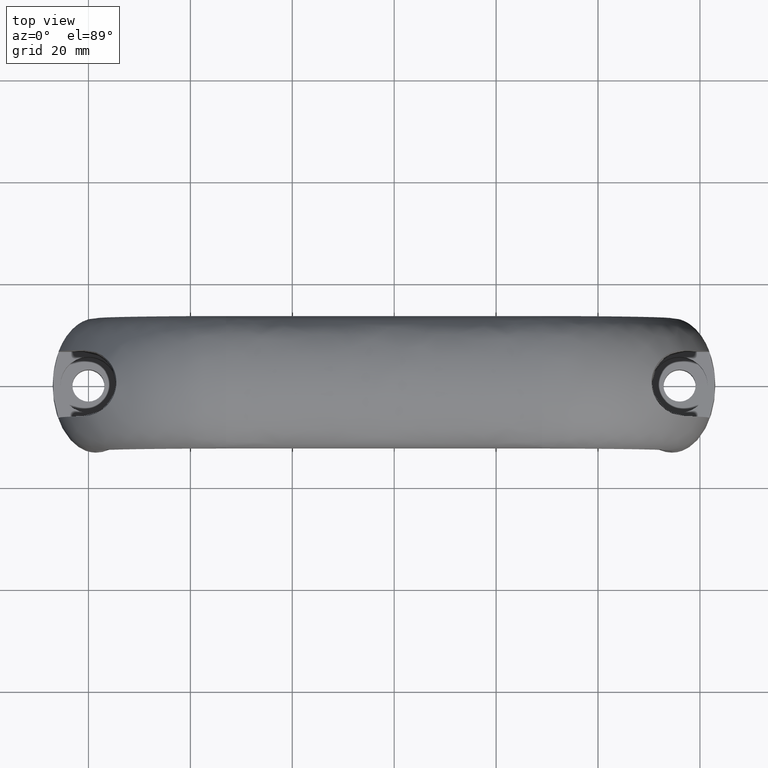
[diagram: clean part render]
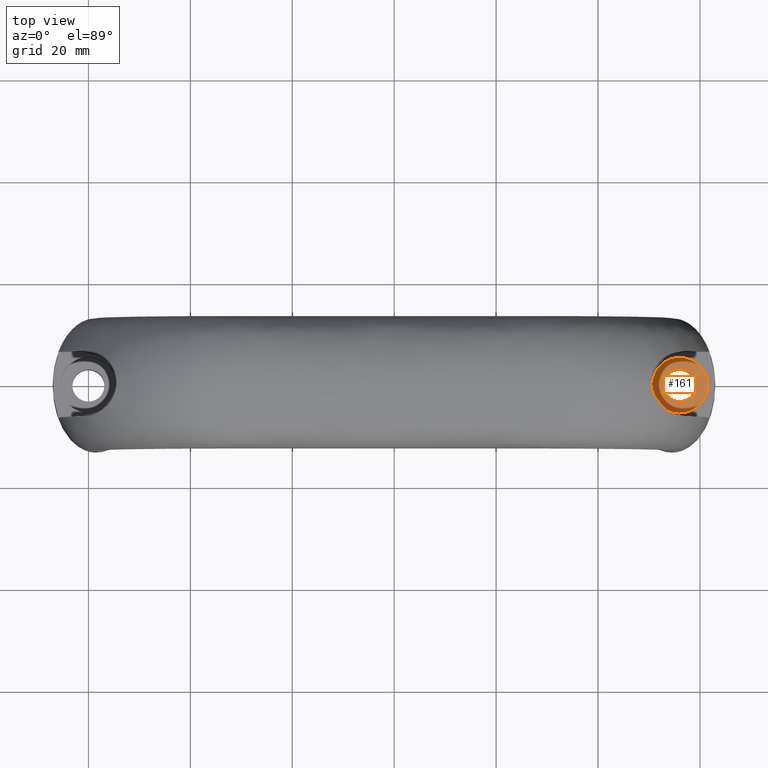
[diagram: same view with one face highlighted and labeled with its STEP entity id]
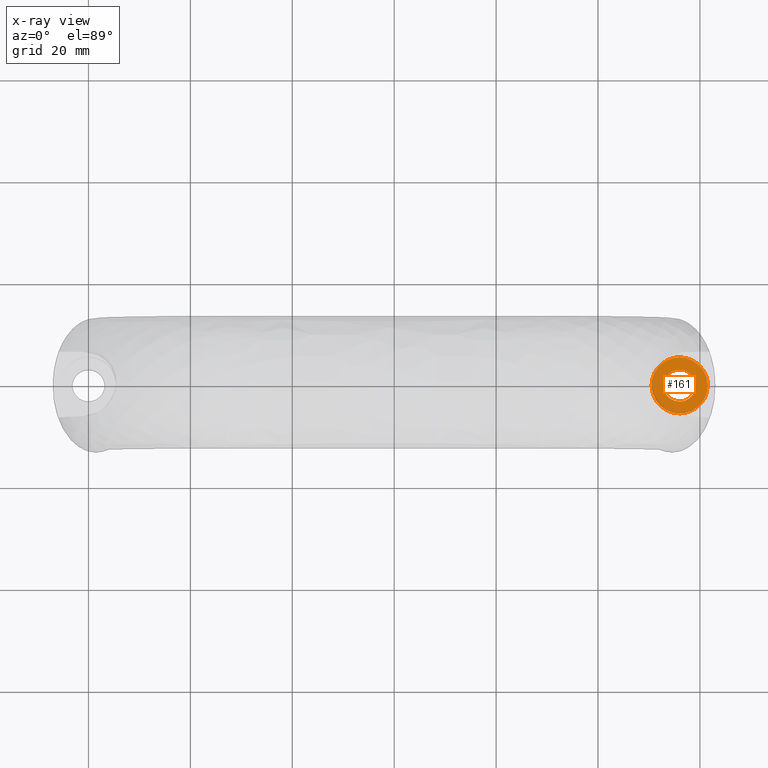
[diagram: x-ray of the same camera — body ghosted, the highlighted face saturated]
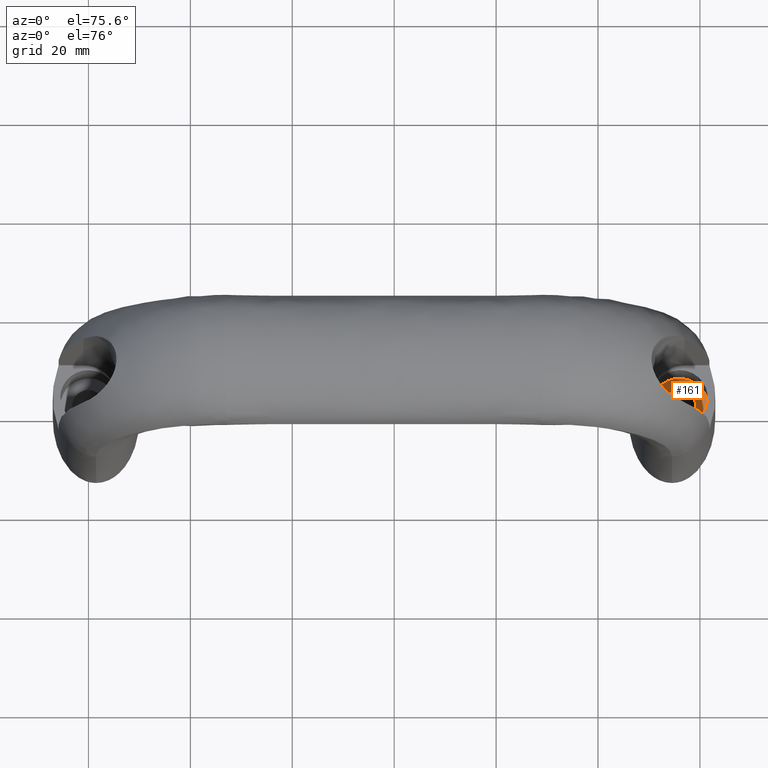
[diagram: same view with one face highlighted and labeled with its STEP entity id]
A machine part, top view. The second image highlights one B-rep face of the part: STEP entity #161.
The next image is the same camera in x-ray: the body ghosted, the highlighted face saturated — about 3% of this face is hidden behind the body in this view.
A second angle (auxiliary view) of the same face is appended — the face is thin or edge-on in the first view.
In plain terms, the highlighted face is a freeform B-spline surface patch.
Its self-contained STEP definition (entity closure, byte-faithful):
#5=CARTESIAN_POINT('',(122.049449978679900,-6.049449978679567,10.500000000000000));
#6=CARTESIAN_POINT('',(109.950549726277200,-6.049449978679567,10.500000000000000));
#7=CARTESIAN_POINT('',(122.049449978679900,6.049450273722559,10.500000000000000));
#8=CARTESIAN_POINT('',(109.950549726277200,6.049450273722559,10.500000000000000));
#9=B_SPLINE_SURFACE_WITH_KNOTS('',1,1,((#5,#7),(#6,#8)),.UNSPECIFIED.,.F.,.F.,.U.,(2,2),(2,2),(0.0,12.098900252402739),(0.0,12.098900252402130),.UNSPECIFIED.);
#10=CARTESIAN_POINT('',(119.715746411276700,4.055025689279050,10.499999999999281));
#11=VERTEX_POINT('',#10);
#12=CARTESIAN_POINT('',(121.500000000000000,0.0,10.500000000000000));
#13=VERTEX_POINT('',#12);
#14=CARTESIAN_POINT('',(119.715746411276700,4.055025689279050,10.499999999999281));
#15=CARTESIAN_POINT('',(120.083569840087700,3.718204785315109,10.499999999999350));
#16=CARTESIAN_POINT('',(120.588621959438500,3.109549310887050,10.499999999999419));
#17=CARTESIAN_POINT('',(121.137887974696800,2.052723616935044,10.499999999999680));
#18=CARTESIAN_POINT('',(121.433082363303000,1.068682876463774,10.499999999999710));
#19=CARTESIAN_POINT('',(121.500023202515390,0.332475138097329,10.500000000000011));
#20=CARTESIAN_POINT('',(121.500000000000000,0.0,10.500000000000000));
#21=B_SPLINE_CURVE_WITH_KNOTS('',3,(#14,#15,#16,#17,#18,#19,#20),.UNSPECIFIED.,.F.,.U.,(4,1,1,1,4),(0.000000044465982,1.496159016345422,2.351074381268739,3.562271194716664,4.559704755115080),.UNSPECIFIED.);
#22=EDGE_CURVE('',#11,#13,#21,.T.);
#23=ORIENTED_EDGE('',*,*,#22,.F.);
#24=CARTESIAN_POINT('',(116.000001727894700,5.499999999999728,10.500000000000000));
#25=VERTEX_POINT('',#24);
#26=CARTESIAN_POINT('',(116.000001727894700,5.499999999999728,10.500000000000000));
#27=CARTESIAN_POINT('',(116.467483041698700,5.500137409906038,10.499999999999920));
#28=CARTESIAN_POINT('',(117.338596187031900,5.388250384134717,10.499999999999719));
#29=CARTESIAN_POINT('',(118.616599613229890,4.899773273266928,10.499999999999501));
#30=CARTESIAN_POINT('',(119.355524380924290,4.385335432006642,10.499999999999320));
#31=CARTESIAN_POINT('',(119.715746411276700,4.055025689279050,10.499999999999281));
#32=B_SPLINE_CURVE_WITH_KNOTS('',3,(#26,#27,#28,#29,#30,#31),.UNSPECIFIED.,.F.,.U.,(4,1,1,4),(0.000000032911171,1.402408690401471,2.613566448886831,4.079728362559101),.UNSPECIFIED.);
#33=EDGE_CURVE('',#25,#11,#32,.T.);
#34=ORIENTED_EDGE('',*,*,#33,.F.);
#35=CARTESIAN_POINT('',(110.500000000000000,0.0,10.500000000000000));
#36=VERTEX_POINT('',#35);
#37=CARTESIAN_POINT('',(110.500000000000000,0.0,10.500000000000000));
#38=CARTESIAN_POINT('',(110.499956011893700,0.382462721909900,10.500000000000020));
#39=CARTESIAN_POINT('',(110.589475017804900,1.237410742852103,10.499999999999989));
#40=CARTESIAN_POINT('',(111.032507063629590,2.500414301476941,10.500000000000011));
#41=CARTESIAN_POINT('',(111.757618524980900,3.571094322280702,10.499999999999940));
#42=CARTESIAN_POINT('',(112.728681602834000,4.484386712409938,10.500000000000091));
#43=CARTESIAN_POINT('',(113.792510399233510,5.095799100016738,10.499999999999840));
#44=CARTESIAN_POINT('',(114.965108290007900,5.435591258924559,10.500000000000250));
#45=CARTESIAN_POINT('',(115.662533423890690,5.500033640195025,10.499999999999799));
#46=CARTESIAN_POINT('',(116.000001727894700,5.499999999999728,10.500000000000000));
#47=B_SPLINE_CURVE_WITH_KNOTS('',3,(#37,#38,#39,#40,#41,#42,#43,#44,#45,#46),.UNSPECIFIED.,.F.,.U.,(4,1,1,1,1,1,1,4),(0.000000148590928,1.147401208913366,2.564842391377214,3.982267981500279,4.994641177310966,6.547073264470522,7.627029290844387,8.639434979699097),.UNSPECIFIED.);
#48=EDGE_CURVE('',#36,#25,#47,.T.);
#49=ORIENTED_EDGE('',*,*,#48,.F.);
#50=CARTESIAN_POINT('',(112.284253588723400,-4.055025689279031,10.499999999999281));
#51=VERTEX_POINT('',#50);
#52=CARTESIAN_POINT('',(112.284253588723400,-4.055025689279031,10.499999999999281));
#53=CARTESIAN_POINT('',(111.969024875414700,-3.766294804903672,10.499999999999350));
#54=CARTESIAN_POINT('',(111.390831659622900,-3.096719963819099,10.499999999999440));
#55=CARTESIAN_POINT('',(110.693262920709600,-1.733380003133345,10.499999999999689));
#56=CARTESIAN_POINT('',(110.499532224970590,-0.641264082496100,10.499999999999901));
#57=CARTESIAN_POINT('',(110.500000000000000,0.0,10.500000000000000));
#58=B_SPLINE_CURVE_WITH_KNOTS('',3,(#52,#53,#54,#55,#56,#57),.UNSPECIFIED.,.F.,.U.,(4,1,1,4),(0.000000044466832,1.282418839392935,2.636063729686378,4.559704755115058),.UNSPECIFIED.);
#59=EDGE_CURVE('',#51,#36,#58,.T.);
#60=ORIENTED_EDGE('',*,*,#59,.F.);
#61=CARTESIAN_POINT('',(115.999998272105400,-5.499999999999729,10.500000000000000));
#62=VERTEX_POINT('',#61);
#63=CARTESIAN_POINT('',(115.999998272105400,-5.499999999999729,10.500000000000000));
#64=CARTESIAN_POINT('',(115.532524287619000,-5.500122659777062,10.499999999999920));
#65=CARTESIAN_POINT('',(114.597625420885290,-5.380136841676208,10.499999999999719));
#66=CARTESIAN_POINT('',(113.325729357326690,-4.868447911729064,10.499999999999501));
#67=CARTESIAN_POINT('',(112.597522739179000,-4.342192289948611,10.499999999999330));
#68=CARTESIAN_POINT('',(112.284253588723400,-4.055025689279031,10.499999999999281));
#69=B_SPLINE_CURVE_WITH_KNOTS('',3,(#63,#64,#65,#66,#67,#68),.UNSPECIFIED.,.F.,.U.,(4,1,1,4),(0.000000032908901,1.402408690399535,2.804810741303481,4.079728362559188),.UNSPECIFIED.);
#70=EDGE_CURVE('',#62,#51,#69,.T.);
#71=ORIENTED_EDGE('',*,*,#70,.F.);
#72=CARTESIAN_POINT('',(121.500000000000000,0.0,10.500000000000000));
#73=CARTESIAN_POINT('',(121.500077024871500,-0.404974421608453,10.499999999999989));
#74=CARTESIAN_POINT('',(121.415126498372300,-1.169887245679472,10.500000000000011));
#75=CARTESIAN_POINT('',(121.074744225215600,-2.200259943746632,10.500000000000000));
#76=CARTESIAN_POINT('',(120.541220381931590,-3.169638577098655,10.500000000000030));
#77=CARTESIAN_POINT('',(119.718701723713200,-4.135359278705676,10.499999999999989));
#78=CARTESIAN_POINT('',(118.711160206594000,-4.835648040726416,10.499999999999989));
#79=CARTESIAN_POINT('',(117.439715978099500,-5.362299194616000,10.500000000000020));
#80=CARTESIAN_POINT('',(116.585000100040110,-5.500302701561609,10.500000000000099));
#81=CARTESIAN_POINT('',(115.999998272105400,-5.499999999999729,10.500000000000000));
#82=B_SPLINE_CURVE_WITH_KNOTS('',3,(#72,#73,#74,#75,#76,#77,#78,#79,#80,#81),.UNSPECIFIED.,.F.,.U.,(4,1,1,1,1,1,1,4),(0.000000148600085,1.214911340604616,2.294851921446813,3.239803277743257,4.522190035745800,6.074594570356698,6.884557977140097,8.639434979699059),.UNSPECIFIED.);
#83=EDGE_CURVE('',#13,#62,#82,.T.);
#84=ORIENTED_EDGE('',*,*,#83,.F.);
#85=EDGE_LOOP('',(#23,#34,#49,#60,#71,#84));
#86=FACE_OUTER_BOUND('',#85,.T.);
#87=CARTESIAN_POINT('',(119.150000000000010,0.0,10.500000000000000));
#88=VERTEX_POINT('',#87);
#89=CARTESIAN_POINT('',(115.999997689449700,-3.149999999999153,10.500000000000000));
#90=VERTEX_POINT('',#89);
#91=CARTESIAN_POINT('',(119.150000000000010,0.0,10.500000000000000));
#92=CARTESIAN_POINT('',(119.150023636888510,-0.206157388981745,10.500000000000011));
#93=CARTESIAN_POINT('',(119.106853091697100,-0.644263456636735,10.500000000000000));
#94=CARTESIAN_POINT('',(118.926767650416000,-1.212773820471343,10.499999999999989));
#95=CARTESIAN_POINT('',(118.646561529731200,-1.736937505468287,10.500000000000030));
#96=CARTESIAN_POINT('',(118.296074895011200,-2.186038344058953,10.499999999999989));
#97=CARTESIAN_POINT('',(117.747127302324300,-2.659773931493666,10.499999999999970));
#98=CARTESIAN_POINT('',(116.979202811382390,-3.046214102930402,10.500000000000099));
#99=CARTESIAN_POINT('',(116.335039621944010,-3.150192996594524,10.499999999999901));
#100=CARTESIAN_POINT('',(115.999997689449700,-3.149999999999153,10.500000000000000));
#101=B_SPLINE_CURVE_WITH_KNOTS('',3,(#91,#92,#93,#94,#95,#96,#97,#98,#99,#100),.UNSPECIFIED.,.F.,.U.,(4,1,1,1,1,1,1,4),(0.000000084111027,0.618490021549401,1.314349055314405,1.778259495759534,2.396759879300863,3.015240762951637,3.943050951976188,4.948133896951918),.UNSPECIFIED.);
#102=EDGE_CURVE('',#88,#90,#101,.T.);
#103=ORIENTED_EDGE('',*,*,#102,.T.);
#104=CARTESIAN_POINT('',(113.871890377712300,-2.322423962327929,10.500000000005301));
#105=VERTEX_POINT('',#104);
#106=CARTESIAN_POINT('',(115.999997689449700,-3.149999999999153,10.500000000000000));
#107=CARTESIAN_POINT('',(115.634869083789600,-3.150274540440960,10.500000000000901));
#108=CARTESIAN_POINT('',(114.856243819700200,-3.012964817576534,10.500000000002879));
#109=CARTESIAN_POINT('',(114.176682646387700,-2.602357866657138,10.500000000004540));
#110=CARTESIAN_POINT('',(113.871890377712300,-2.322423962327929,10.500000000005301));
#111=B_SPLINE_CURVE_WITH_KNOTS('',3,(#106,#107,#108,#109,#110),.UNSPECIFIED.,.F.,.U.,(4,1,4),(0.000000041517041,1.095295775173069,2.336609847277475),.UNSPECIFIED.);
#112=EDGE_CURVE('',#90,#105,#111,.T.);
#113=ORIENTED_EDGE('',*,*,#112,.T.);
#114=CARTESIAN_POINT('',(112.849999999999990,0.0,10.500000000000000));
#115=VERTEX_POINT('',#114);
#116=CARTESIAN_POINT('',(113.871890377712300,-2.322423962327929,10.500000000005301));
#117=CARTESIAN_POINT('',(113.570689714212310,-2.047032393538331,10.500000000004670));
#118=CARTESIAN_POINT('',(113.193307636593200,-1.533310093509482,10.500000000003499));
#119=CARTESIAN_POINT('',(112.904202145735200,-0.707235120336455,10.500000000001620));
#120=CARTESIAN_POINT('',(112.849947935850300,-0.244830411132425,10.500000000000560));
#121=CARTESIAN_POINT('',(112.849999999999990,0.0,10.500000000000000));
#122=B_SPLINE_CURVE_WITH_KNOTS('',3,(#116,#117,#118,#119,#120,#121),.UNSPECIFIED.,.F.,.U.,(4,1,1,4),(0.000000024933393,1.224151526671538,1.877031422278795,2.611522036491513),.UNSPECIFIED.);
#123=EDGE_CURVE('',#105,#115,#122,.T.);
#124=ORIENTED_EDGE('',*,*,#123,.T.);
#125=CARTESIAN_POINT('',(116.000002310550400,3.149999999999153,10.500000000000000));
#126=VERTEX_POINT('',#125);
#127=CARTESIAN_POINT('',(112.849999999999990,0.0,10.500000000000000));
#128=CARTESIAN_POINT('',(112.849996774387710,0.206154227763105,10.500000000000000));
#129=CARTESIAN_POINT('',(112.898151100579200,0.695827890655247,10.499999999999989));
#130=CARTESIAN_POINT('',(113.126586182467700,1.359794111795311,10.500000000000020));
#131=CARTESIAN_POINT('',(113.500714373156600,1.950465721239317,10.499999999999980));
#132=CARTESIAN_POINT('',(114.000612968211200,2.475685909358816,10.500000000000000));
#133=CARTESIAN_POINT('',(114.638863616669200,2.879881222965917,10.500000000000000));
#134=CARTESIAN_POINT('',(115.355748107763110,3.106840298696689,10.499999999999989));
#135=CARTESIAN_POINT('',(115.793844759067300,3.150023583305477,10.500000000000011));
#136=CARTESIAN_POINT('',(116.000002310550400,3.149999999999153,10.500000000000000));
#137=B_SPLINE_CURVE_WITH_KNOTS('',3,(#127,#128,#129,#130,#131,#132,#133,#134,#135,#136),.UNSPECIFIED.,.F.,.U.,(4,1,1,1,1,1,1,4),(0.000000084114597,0.618490021552462,1.468984419508916,2.087520936984804,2.705990525003048,3.633785145427564,4.329643868320593,4.948133896951918),.UNSPECIFIED.);
#138=EDGE_CURVE('',#115,#126,#137,.T.);
#139=ORIENTED_EDGE('',*,*,#138,.T.);
#140=CARTESIAN_POINT('',(118.128109622287700,2.322423962327943,10.500000000005301));
#141=VERTEX_POINT('',#140);
#142=CARTESIAN_POINT('',(116.000002310550400,3.149999999999153,10.500000000000000));
#143=CARTESIAN_POINT('',(116.365124063923200,3.150261110552965,10.500000000000909));
#144=CARTESIAN_POINT('',(117.143783507527500,3.013018678214393,10.500000000002860));
#145=CARTESIAN_POINT('',(117.823291522435600,2.602313865631060,10.500000000004549));
#146=CARTESIAN_POINT('',(118.128109622287700,2.322423962327943,10.500000000005301));
#147=B_SPLINE_CURVE_WITH_KNOTS('',3,(#142,#143,#144,#145,#146),.UNSPECIFIED.,.F.,.U.,(4,1,4),(0.000000041519017,1.095295775174292,2.336609847277424),.UNSPECIFIED.);
#148=EDGE_CURVE('',#126,#141,#147,.T.);
#149=ORIENTED_EDGE('',*,*,#148,.T.);
#150=CARTESIAN_POINT('',(118.128109622287700,2.322423962327943,10.500000000005301));
#151=CARTESIAN_POINT('',(118.429311429603700,2.047033003080984,10.500000000004681));
#152=CARTESIAN_POINT('',(118.806691793199800,1.533309619108773,10.500000000003491));
#153=CARTESIAN_POINT('',(119.095798136430700,0.707235518531487,10.500000000001609));
#154=CARTESIAN_POINT('',(119.150051941713900,0.244830276766197,10.500000000000570));
#155=CARTESIAN_POINT('',(119.150000000000010,0.0,10.500000000000000));
#156=B_SPLINE_CURVE_WITH_KNOTS('',3,(#150,#151,#152,#153,#154,#155),.UNSPECIFIED.,.F.,.U.,(4,1,1,4),(0.000000024934893,1.224151526672461,1.877031422279334,2.611522036491529),.UNSPECIFIED.);
#157=EDGE_CURVE('',#141,#88,#156,.T.);
#158=ORIENTED_EDGE('',*,*,#157,.T.);
#159=EDGE_LOOP('',(#103,#113,#124,#139,#149,#158));
#160=FACE_BOUND('',#159,.T.);
#161=ADVANCED_FACE('',(#86,#160),#9,.F.);